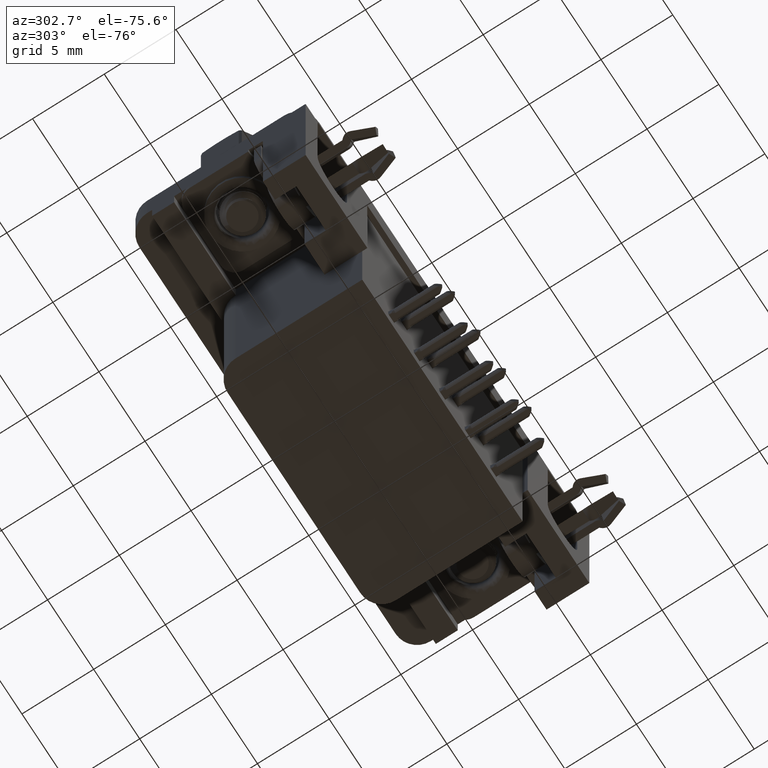
[diagram: clean part render]
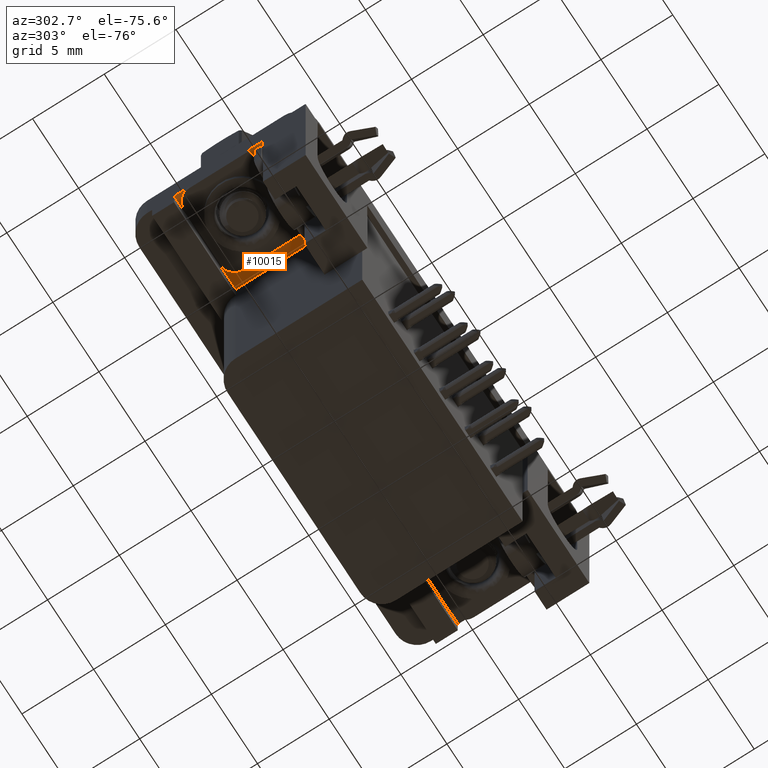
[diagram: same view with one face highlighted and labeled with its STEP entity id]
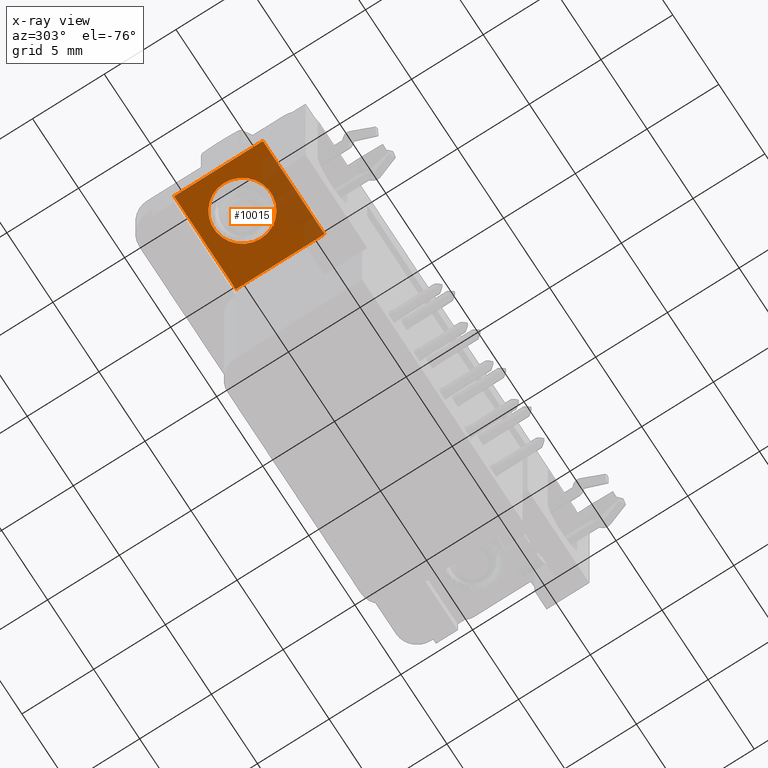
[diagram: x-ray of the same camera — body ghosted, the highlighted face saturated]
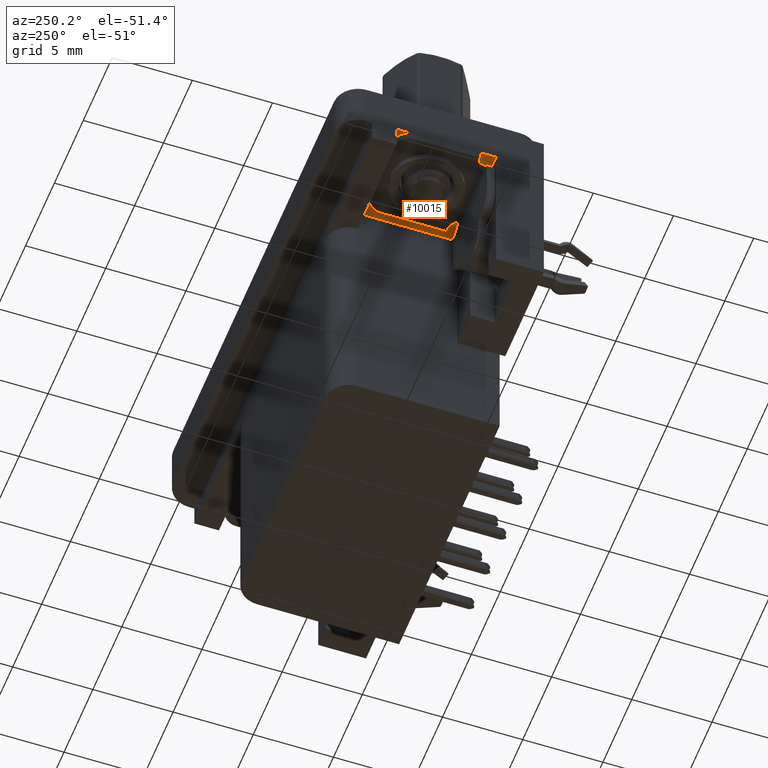
[diagram: same view with one face highlighted and labeled with its STEP entity id]
A machine part, auxiliary view. The second image highlights one B-rep face of the part: STEP entity #10015.
The next image is the same camera in x-ray: the body ghosted, the highlighted face saturated — about 26% of this face is hidden behind the body in this view.
A second angle (auxiliary view) of the same face is appended — the face is thin or edge-on in the first view.
In plain terms, the highlighted planar face has unit normal (0, 0, -1).
Its self-contained STEP definition (entity closure, byte-faithful):
#417 = EDGE_CURVE ( 'NONE', #9339, #28224, #15207, .T. ) ;
#650 = CARTESIAN_POINT ( 'NONE',  ( -1.410000000000006400, 4.775000000000002100, -2.500000000000000000 ) ) ;
#850 = DIRECTION ( 'NONE',  ( 1.000000000000000000, 0.0000000000000000000, 0.0000000000000000000 ) ) ;
#958 = DIRECTION ( 'NONE',  ( 0.0000000000000000000, 0.0000000000000000000, 1.000000000000000000 ) ) ;
#1999 = EDGE_CURVE ( 'NONE', #27784, #26069, #19579, .T. ) ;
#3406 = VECTOR ( 'NONE', #28276, 1000.000000000000000 ) ;
#4778 = ORIENTED_EDGE ( 'NONE', *, *, #11406, .F. ) ;
#4970 = AXIS2_PLACEMENT_3D ( 'NONE', #8993, #25509, #11388 ) ;
#5386 = CARTESIAN_POINT ( 'NONE',  ( -2.910000000000006400, -6.274999999999998600, -2.500000000000000000 ) ) ;
#5402 = AXIS2_PLACEMENT_3D ( 'NONE', #26845, #958, #850 ) ;
#5549 = CARTESIAN_POINT ( 'NONE',  ( -2.000000000000000000, 2.449293598294706400E-016, -2.500000000000000000 ) ) ;
#6605 = DIRECTION ( 'NONE',  ( 1.000000000000000000, -6.472848790958235800E-017, -0.0000000000000000000 ) ) ;
#7700 = VERTEX_POINT ( 'NONE', #25014 ) ;
#7752 = DIRECTION ( 'NONE',  ( -0.0000000000000000000, 0.0000000000000000000, -1.000000000000000000 ) ) ;
#7817 = AXIS2_PLACEMENT_3D ( 'NONE', #650, #7752, #24298 ) ;
#8517 = FACE_OUTER_BOUND ( 'NONE', #27244, .T. ) ;
#8907 = EDGE_CURVE ( 'NONE', #13062, #9339, #13020, .T. ) ;
#8993 = CARTESIAN_POINT ( 'NONE',  ( 0.0000000000000000000, 0.0000000000000000000, -2.500000000000000000 ) ) ;
#9339 = VERTEX_POINT ( 'NONE', #25638 ) ;
#9707 = CARTESIAN_POINT ( 'NONE',  ( 2.000000000000000000, 0.0000000000000000000, -2.500000000000000000 ) ) ;
#10015 = ADVANCED_FACE ( 'NONE', ( #13338, #8517 ), #21928, .T. ) ;
#10061 = EDGE_CURVE ( 'NONE', #28224, #7700, #18874, .T. ) ;
#10653 = ORIENTED_EDGE ( 'NONE', *, *, #17505, .T. ) ;
#11388 = DIRECTION ( 'NONE',  ( 1.000000000000000000, 0.0000000000000000000, 0.0000000000000000000 ) ) ;
#11406 = EDGE_CURVE ( 'NONE', #7700, #13062, #16606, .T. ) ;
#12135 = CARTESIAN_POINT ( 'NONE',  ( -2.910000000000005900, 2.894999999999992500, -2.500000000000000000 ) ) ;
#13020 = LINE ( 'NONE', #25982, #24831 ) ;
#13062 = VERTEX_POINT ( 'NONE', #16694 ) ;
#13338 = FACE_BOUND ( 'NONE', #21550, .T. ) ;
#15207 = LINE ( 'NONE', #12135, #3406 ) ;
#15219 = ORIENTED_EDGE ( 'NONE', *, *, #10061, .F. ) ;
#16606 = LINE ( 'NONE', #23151, #29158 ) ;
#16694 = CARTESIAN_POINT ( 'NONE',  ( 3.789999999999992900, -3.294999999999998600, -2.500000000000000000 ) ) ;
#17252 = ORIENTED_EDGE ( 'NONE', *, *, #417, .F. ) ;
#17505 = EDGE_CURVE ( 'NONE', #26069, #27784, #26854, .T. ) ;
#18122 = VECTOR ( 'NONE', #29023, 1000.000000000000000 ) ;
#18874 = LINE ( 'NONE', #5386, #18122 ) ;
#19579 = CIRCLE ( 'NONE', #5402, 2.000000000000000000 ) ;
#21550 = EDGE_LOOP ( 'NONE', ( #10653, #23382 ) ) ;
#21928 = PLANE ( 'NONE',  #7817 ) ;
#23151 = CARTESIAN_POINT ( 'NONE',  ( 3.789999999999993800, -3.294999999999998600, -2.500000000000000000 ) ) ;
#23382 = ORIENTED_EDGE ( 'NONE', *, *, #1999, .T. ) ;
#24298 = DIRECTION ( 'NONE',  ( -1.000000000000000000, 0.0000000000000000000, 0.0000000000000000000 ) ) ;
#24831 = VECTOR ( 'NONE', #28361, 1000.000000000000000 ) ;
#25014 = CARTESIAN_POINT ( 'NONE',  ( -2.910000000000006400, -3.294999999999998600, -2.500000000000000000 ) ) ;
#25509 = DIRECTION ( 'NONE',  ( 0.0000000000000000000, 0.0000000000000000000, 1.000000000000000000 ) ) ;
#25638 = CARTESIAN_POINT ( 'NONE',  ( 3.789999999999993400, 2.894999999999992500, -2.500000000000000000 ) ) ;
#25937 = ORIENTED_EDGE ( 'NONE', *, *, #8907, .F. ) ;
#25982 = CARTESIAN_POINT ( 'NONE',  ( 3.789999999999993800, -3.294999999999998600, -2.500000000000000000 ) ) ;
#26069 = VERTEX_POINT ( 'NONE', #9707 ) ;
#26845 = CARTESIAN_POINT ( 'NONE',  ( 0.0000000000000000000, 0.0000000000000000000, -2.500000000000000000 ) ) ;
#26854 = CIRCLE ( 'NONE', #4970, 2.000000000000000000 ) ;
#27244 = EDGE_LOOP ( 'NONE', ( #25937, #4778, #15219, #17252 ) ) ;
#27784 = VERTEX_POINT ( 'NONE', #5549 ) ;
#28224 = VERTEX_POINT ( 'NONE', #29629 ) ;
#28276 = DIRECTION ( 'NONE',  ( -1.000000000000000000, -0.0000000000000000000, -0.0000000000000000000 ) ) ;
#28361 = DIRECTION ( 'NONE',  ( -6.972361237848913400E-017, 1.000000000000000000, 0.0000000000000000000 ) ) ;
#29023 = DIRECTION ( 'NONE',  ( -0.0000000000000000000, -1.000000000000000000, -0.0000000000000000000 ) ) ;
#29158 = VECTOR ( 'NONE', #6605, 1000.000000000000000 ) ;
#29629 = CARTESIAN_POINT ( 'NONE',  ( -2.910000000000005900, 2.894999999999992500, -2.500000000000000000 ) ) ;